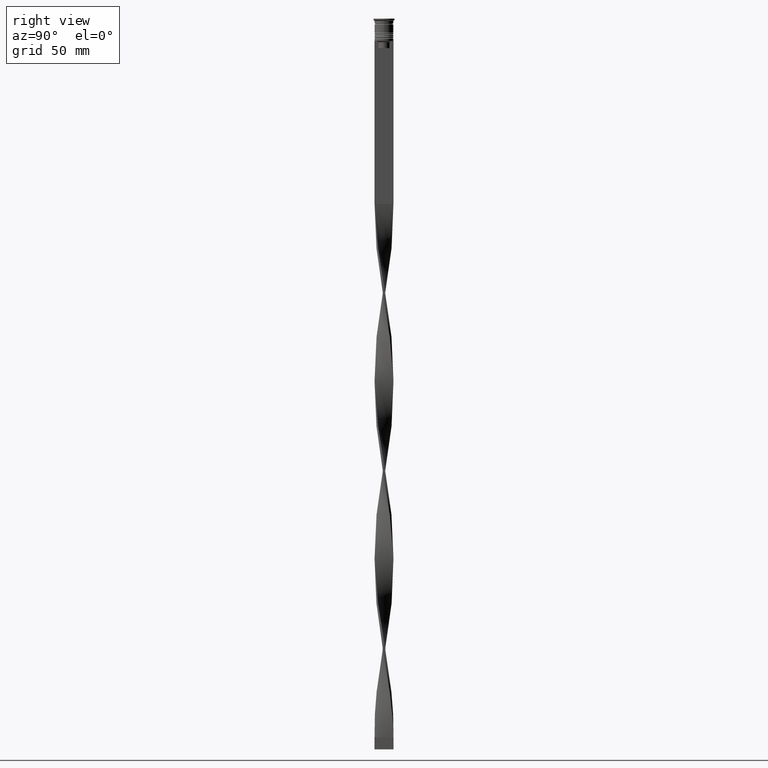
[diagram: clean part render]
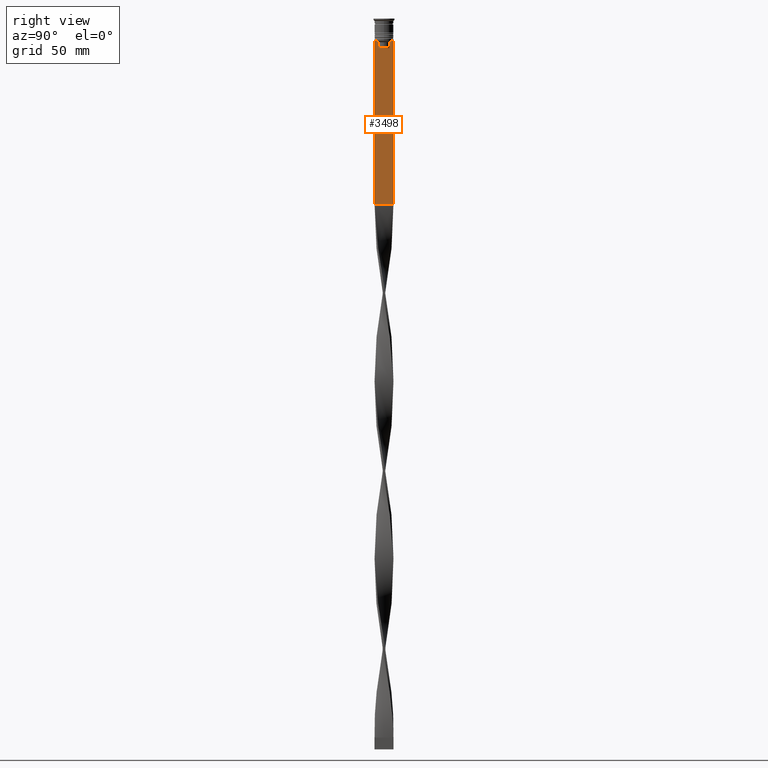
[diagram: same view with one face highlighted and labeled with its STEP entity id]
A machine part, right view. The second image highlights one B-rep face of the part: STEP entity #3498.
In plain terms, the highlighted planar face has unit normal (-1, 0, 0).
Its self-contained STEP definition (entity closure, byte-faithful):
#4 = DIRECTION ( 'NONE',  ( 0.000000000000000000, 0.000000000000000000, -1.000000000000000000 ) ) ;
#153 = CARTESIAN_POINT ( 'NONE',  ( 0.5000000000000000000, 4.000000000000000000, -78.50000000000000000 ) ) ;
#188 = VERTEX_POINT ( 'NONE', #2355 ) ;
#230 = ORIENTED_EDGE ( 'NONE', *, *, #895, .T. ) ;
#264 = VECTOR ( 'NONE', #398, 1000.000000000000000 ) ;
#398 = DIRECTION ( 'NONE',  ( 0.000000000000000000, 1.000000000000000000, 0.000000000000000000 ) ) ;
#419 = CARTESIAN_POINT ( 'NONE',  ( 0.5000000000000000000, 2.856571371417138572, -9.500000000000000000 ) ) ;
#455 = LINE ( 'NONE', #2288, #1765 ) ;
#466 = VERTEX_POINT ( 'NONE', #3803 ) ;
#519 = EDGE_CURVE ( 'NONE', #4038, #2855, #2305, .T. ) ;
#530 = ORIENTED_EDGE ( 'NONE', *, *, #1929, .T. ) ;
#553 = CARTESIAN_POINT ( 'NONE',  ( 0.5000000000000000000, -2.856571371417138572, -9.500000000000000000 ) ) ;
#610 = LINE ( 'NONE', #3042, #1181 ) ;
#685 = EDGE_CURVE ( 'NONE', #3063, #1711, #2074, .T. ) ;
#767 = EDGE_CURVE ( 'NONE', #188, #466, #883, .T. ) ;
#788 = DIRECTION ( 'NONE',  ( 0.000000000000000000, -1.000000000000000000, 0.000000000000000000 ) ) ;
#807 = CARTESIAN_POINT ( 'NONE',  ( 0.5000000000000000000, -2.347338918861097135, -10.00000000000000000 ) ) ;
#819 = EDGE_CURVE ( 'NONE', #2855, #1731, #1543, .T. ) ;
#826 = LINE ( 'NONE', #1467, #3345 ) ;
#847 = CARTESIAN_POINT ( 'NONE',  ( 0.5000000000000000000, 3.867815921162741422, -9.500000000000000000 ) ) ;
#878 = ORIENTED_EDGE ( 'NONE', *, *, #519, .T. ) ;
#883 = LINE ( 'NONE', #1258, #3145 ) ;
#895 = EDGE_CURVE ( 'NONE', #1731, #2796, #3093, .T. ) ;
#1003 = ORIENTED_EDGE ( 'NONE', *, *, #685, .T. ) ;
#1065 = CARTESIAN_POINT ( 'NONE',  ( 0.5000000000000000000, -4.000000000000000000, -78.50000000000000000 ) ) ;
#1149 = VERTEX_POINT ( 'NONE', #847 ) ;
#1181 = VECTOR ( 'NONE', #3733, 1000.000000000000000 ) ;
#1201 = EDGE_CURVE ( 'NONE', #1711, #4038, #3119, .T. ) ;
#1258 = CARTESIAN_POINT ( 'NONE',  ( 0.5000000000000000000, 2.347338918861097135, 0.000000000000000000 ) ) ;
#1327 = CARTESIAN_POINT ( 'NONE',  ( 0.5000000000000000000, 2.517407211010872281, -9.833663366238582171 ) ) ;
#1412 = VERTEX_POINT ( 'NONE', #419 ) ;
#1426 = VECTOR ( 'NONE', #4, 1000.000000000000000 ) ;
#1467 = CARTESIAN_POINT ( 'NONE',  ( 0.5000000000000000000, 2.399999999999996803, -12.50000000000000000 ) ) ;
#1513 = CARTESIAN_POINT ( 'NONE',  ( 0.5000000000000000000, -2.347338918861097135, -12.50000000000000000 ) ) ;
#1521 = ORIENTED_EDGE ( 'NONE', *, *, #3415, .T. ) ;
#1523 = DIRECTION ( 'NONE',  ( 0.000000000000000000, 0.000000000000000000, -1.000000000000000000 ) ) ;
#1543 = LINE ( 'NONE', #1915, #2735 ) ;
#1549 = EDGE_CURVE ( 'NONE', #1149, #1412, #455, .T. ) ;
#1574 = LINE ( 'NONE', #2266, #264 ) ;
#1711 = VERTEX_POINT ( 'NONE', #807 ) ;
#1731 = VERTEX_POINT ( 'NONE', #3240 ) ;
#1740 = CARTESIAN_POINT ( 'NONE',  ( 0.5000000000000000000, -3.867815921162741422, -9.500000000000000000 ) ) ;
#1765 = VECTOR ( 'NONE', #788, 1000.000000000000000 ) ;
#1776 = AXIS2_PLACEMENT_3D ( 'NONE', #3713, #2819, #4085 ) ;
#1791 = FACE_OUTER_BOUND ( 'NONE', #3581, .T. ) ;
#1855 = DIRECTION ( 'NONE',  ( 0.000000000000000000, 0.000000000000000000, -1.000000000000000000 ) ) ;
#1870 = PLANE ( 'NONE',  #1776 ) ;
#1915 = CARTESIAN_POINT ( 'NONE',  ( 0.5000000000000000000, -4.000000000000000000, -9.500000000000000000 ) ) ;
#1929 = EDGE_CURVE ( 'NONE', #466, #3063, #826, .T. ) ;
#2074 = LINE ( 'NONE', #3699, #3743 ) ;
#2101 = DIRECTION ( 'NONE',  ( 0.000000000000000000, -1.000000000000000000, 0.000000000000000000 ) ) ;
#2115 = CARTESIAN_POINT ( 'NONE',  ( 0.5000000000000000000, -2.517408374291112416, -9.833662228483172285 ) ) ;
#2155 = CARTESIAN_POINT ( 'NONE',  ( 0.5000000000000000000, 4.000000000000000000, -1.437742251701450202 ) ) ;
#2157 = CARTESIAN_POINT ( 'NONE',  ( 0.5000000000000000000, -4.000000000000000000, -1.437742251701450202 ) ) ;
#2207 = ORIENTED_EDGE ( 'NONE', *, *, #819, .T. ) ;
#2212 = ORIENTED_EDGE ( 'NONE', *, *, #767, .T. ) ;
#2220 = CARTESIAN_POINT ( 'NONE',  ( 0.5000000000000000000, -2.856571371417138572, -9.500000000000000000 ) ) ;
#2266 = CARTESIAN_POINT ( 'NONE',  ( 0.5000000000000000000, -4.000000000000000000, -78.50000000000000000 ) ) ;
#2288 = CARTESIAN_POINT ( 'NONE',  ( 0.5000000000000000000, -4.000000000000000000, -9.500000000000000000 ) ) ;
#2305 = LINE ( 'NONE', #3865, #4070 ) ;
#2355 = CARTESIAN_POINT ( 'NONE',  ( 0.5000000000000000000, 2.347338918861097135, -10.00000000000000000 ) ) ;
#2377 = B_SPLINE_CURVE_WITH_KNOTS ( 'NONE', 3,
 ( #2905, #3849, #1327, #3496 ),
 .UNSPECIFIED., .F., .F.,
 ( 4, 4 ),
 ( 0.004956812174141191595, 0.005670477137898149653 ),
 .UNSPECIFIED. ) ;
#2509 = DIRECTION ( 'NONE',  ( 0.000000000000000000, -1.000000000000000000, 0.000000000000000000 ) ) ;
#2528 = CARTESIAN_POINT ( 'NONE',  ( 0.5000000000000000000, 4.000000000000000000, -9.500000000000000000 ) ) ;
#2593 = EDGE_CURVE ( 'NONE', #4035, #3529, #3778, .T. ) ;
#2735 = VECTOR ( 'NONE', #2509, 1000.000000000000000 ) ;
#2796 = VERTEX_POINT ( 'NONE', #1065 ) ;
#2819 = DIRECTION ( 'NONE',  ( -1.000000000000000000, 0.000000000000000000, 0.000000000000000000 ) ) ;
#2855 = VERTEX_POINT ( 'NONE', #1740 ) ;
#2905 = CARTESIAN_POINT ( 'NONE',  ( 0.5000000000000000000, 2.856571371417138572, -9.500000000000000000 ) ) ;
#2988 = DIRECTION ( 'NONE',  ( 0.000000000000000000, -1.000000000000000000, 0.000000000000000000 ) ) ;
#3042 = CARTESIAN_POINT ( 'NONE',  ( 0.5000000000000000000, -4.000000000000000000, -9.500000000000000000 ) ) ;
#3063 = VERTEX_POINT ( 'NONE', #1513 ) ;
#3093 = LINE ( 'NONE', #2157, #1426 ) ;
#3106 = ORIENTED_EDGE ( 'NONE', *, *, #1201, .T. ) ;
#3119 = B_SPLINE_CURVE_WITH_KNOTS ( 'NONE', 3,
 ( #3966, #2115, #3382, #553 ),
 .UNSPECIFIED., .F., .F.,
 ( 4, 4 ),
 ( 0.01178336557230038467, 0.01249758354768160280 ),
 .UNSPECIFIED. ) ;
#3144 = EDGE_CURVE ( 'NONE', #1412, #188, #2377, .T. ) ;
#3145 = VECTOR ( 'NONE', #1523, 1000.000000000000000 ) ;
#3176 = ORIENTED_EDGE ( 'NONE', *, *, #3254, .T. ) ;
#3240 = CARTESIAN_POINT ( 'NONE',  ( 0.5000000000000000000, -4.000000000000000000, -9.500000000000000000 ) ) ;
#3254 = EDGE_CURVE ( 'NONE', #2796, #3529, #1574, .T. ) ;
#3323 = DIRECTION ( 'NONE',  ( -0.000000000000000000, -0.000000000000000000, 1.000000000000000000 ) ) ;
#3345 = VECTOR ( 'NONE', #2101, 1000.000000000000000 ) ;
#3382 = CARTESIAN_POINT ( 'NONE',  ( 0.5000000000000000000, -2.687095498514037839, -9.666937905752043037 ) ) ;
#3415 = EDGE_CURVE ( 'NONE', #4035, #1149, #610, .T. ) ;
#3496 = CARTESIAN_POINT ( 'NONE',  ( 0.5000000000000000000, 2.347338918861097135, -10.00000000000000000 ) ) ;
#3498 = ADVANCED_FACE ( 'NONE', ( #1791 ), #1870, .F. ) ;
#3503 = ORIENTED_EDGE ( 'NONE', *, *, #3144, .T. ) ;
#3529 = VERTEX_POINT ( 'NONE', #153 ) ;
#3548 = ORIENTED_EDGE ( 'NONE', *, *, #1549, .T. ) ;
#3551 = VECTOR ( 'NONE', #1855, 1000.000000000000000 ) ;
#3581 = EDGE_LOOP ( 'NONE', ( #3548, #3503, #2212, #530, #1003, #3106, #878, #2207, #230, #3176, #3881, #1521 ) ) ;
#3699 = CARTESIAN_POINT ( 'NONE',  ( 0.5000000000000000000, -2.347338918861097135, 0.000000000000000000 ) ) ;
#3713 = CARTESIAN_POINT ( 'NONE',  ( 0.5000000000000000000, -4.000000000000000000, -1.437742251701450202 ) ) ;
#3733 = DIRECTION ( 'NONE',  ( 0.000000000000000000, -1.000000000000000000, 0.000000000000000000 ) ) ;
#3743 = VECTOR ( 'NONE', #3323, 1000.000000000000000 ) ;
#3778 = LINE ( 'NONE', #2155, #3551 ) ;
#3803 = CARTESIAN_POINT ( 'NONE',  ( 0.5000000000000000000, 2.347338918861097135, -12.50000000000000000 ) ) ;
#3849 = CARTESIAN_POINT ( 'NONE',  ( 0.5000000000000000000, 2.687094542495898075, -9.666938847453439010 ) ) ;
#3865 = CARTESIAN_POINT ( 'NONE',  ( 0.5000000000000000000, -4.000000000000000000, -9.500000000000000000 ) ) ;
#3881 = ORIENTED_EDGE ( 'NONE', *, *, #2593, .F. ) ;
#3966 = CARTESIAN_POINT ( 'NONE',  ( 0.5000000000000000000, -2.347338918861097135, -10.00000000000000000 ) ) ;
#4035 = VERTEX_POINT ( 'NONE', #2528 ) ;
#4038 = VERTEX_POINT ( 'NONE', #2220 ) ;
#4070 = VECTOR ( 'NONE', #2988, 1000.000000000000000 ) ;
#4085 = DIRECTION ( 'NONE',  ( 0.000000000000000000, 0.000000000000000000, 1.000000000000000000 ) ) ;